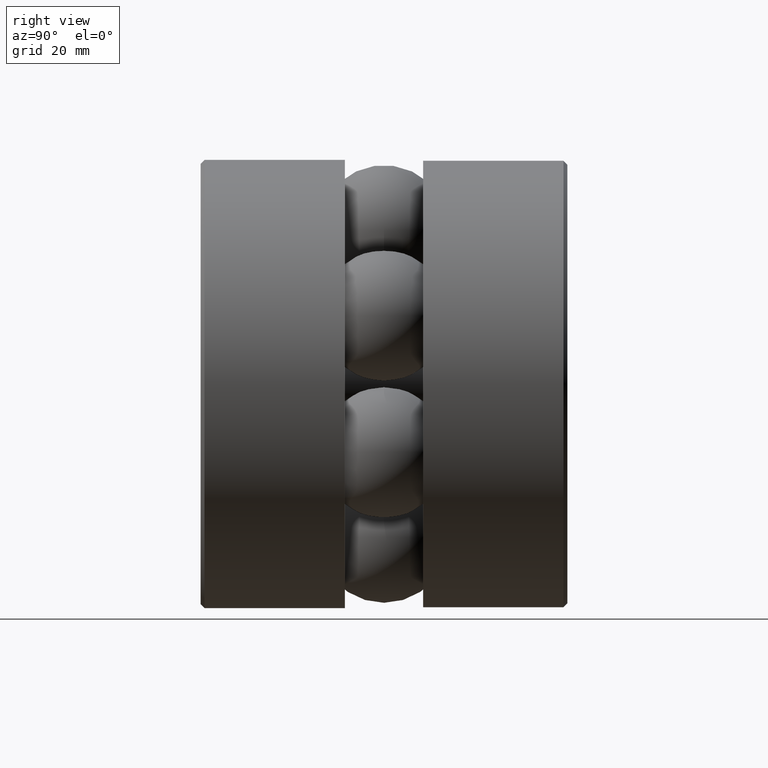
[diagram: clean part render]
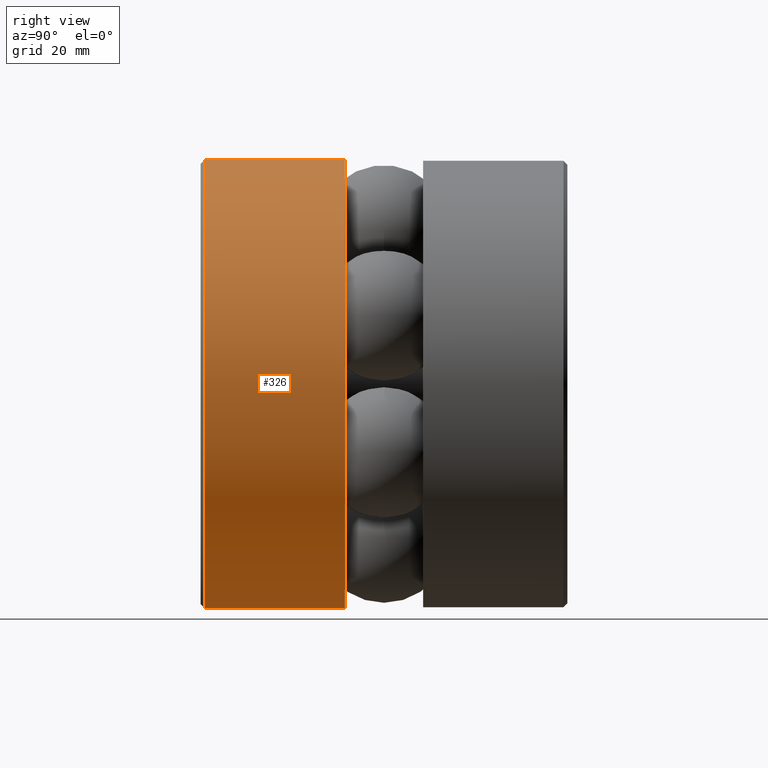
[diagram: same view with one face highlighted and labeled with its STEP entity id]
A machine part, right view. The second image highlights one B-rep face of the part: STEP entity #326.
In plain terms, the highlighted cylindrical surface (bore or boss wall) has radius 43.6626 mm, axis along (-0, 1, -0).
Its self-contained STEP definition (entity closure, byte-faithful):
#38 = CARTESIAN_POINT ( 'NONE',  ( 0.0000000000000000000, 0.03000000000000010600, 1.719000000000000100 ) ) ;
#65 = CARTESIAN_POINT ( 'NONE',  ( 0.0000000000000000000, 1.106499999999999600, 1.719000000000000100 ) ) ;
#127 = ORIENTED_EDGE ( 'NONE', *, *, #308, .F. ) ;
#137 = CIRCLE ( 'NONE', #549, 1.719000000000000100 ) ;
#159 = ORIENTED_EDGE ( 'NONE', *, *, #468, .T. ) ;
#195 = CIRCLE ( 'NONE', #278, 1.719000000000000100 ) ;
#207 = FACE_OUTER_BOUND ( 'NONE', #457, .T. ) ;
#219 = DIRECTION ( 'NONE',  ( 0.0000000000000000000, 0.0000000000000000000, 1.000000000000000000 ) ) ;
#223 = DIRECTION ( 'NONE',  ( -0.0000000000000000000, 1.000000000000000000, -0.0000000000000000000 ) ) ;
#226 = CARTESIAN_POINT ( 'NONE',  ( 0.0000000000000000000, 0.03000000000000010600, 0.0000000000000000000 ) ) ;
#269 = VERTEX_POINT ( 'NONE', #38 ) ;
#278 = AXIS2_PLACEMENT_3D ( 'NONE', #389, #387, #385 ) ;
#308 = EDGE_CURVE ( 'NONE', #401, #401, #195, .T. ) ;
#326 = ADVANCED_FACE ( 'NONE', ( #441, #207 ), #408, .T. ) ;
#368 = AXIS2_PLACEMENT_3D ( 'NONE', #409, #400, #395 ) ;
#385 = DIRECTION ( 'NONE',  ( 0.0000000000000000000, 0.0000000000000000000, 1.000000000000000000 ) ) ;
#387 = DIRECTION ( 'NONE',  ( -0.0000000000000000000, 1.000000000000000000, -0.0000000000000000000 ) ) ;
#389 = CARTESIAN_POINT ( 'NONE',  ( 0.0000000000000000000, 1.106499999999999600, 0.0000000000000000000 ) ) ;
#395 = DIRECTION ( 'NONE',  ( 0.0000000000000000000, 0.0000000000000000000, 1.000000000000000000 ) ) ;
#400 = DIRECTION ( 'NONE',  ( -0.0000000000000000000, 1.000000000000000000, -0.0000000000000000000 ) ) ;
#401 = VERTEX_POINT ( 'NONE', #65 ) ;
#408 = CYLINDRICAL_SURFACE ( 'NONE', #368, 1.719000000000000100 ) ;
#409 = CARTESIAN_POINT ( 'NONE',  ( 0.0000000000000000000, 0.0000000000000000000, 0.0000000000000000000 ) ) ;
#441 = FACE_OUTER_BOUND ( 'NONE', #511, .T. ) ;
#457 = EDGE_LOOP ( 'NONE', ( #127 ) ) ;
#468 = EDGE_CURVE ( 'NONE', #269, #269, #137, .T. ) ;
#511 = EDGE_LOOP ( 'NONE', ( #159 ) ) ;
#549 = AXIS2_PLACEMENT_3D ( 'NONE', #226, #223, #219 ) ;